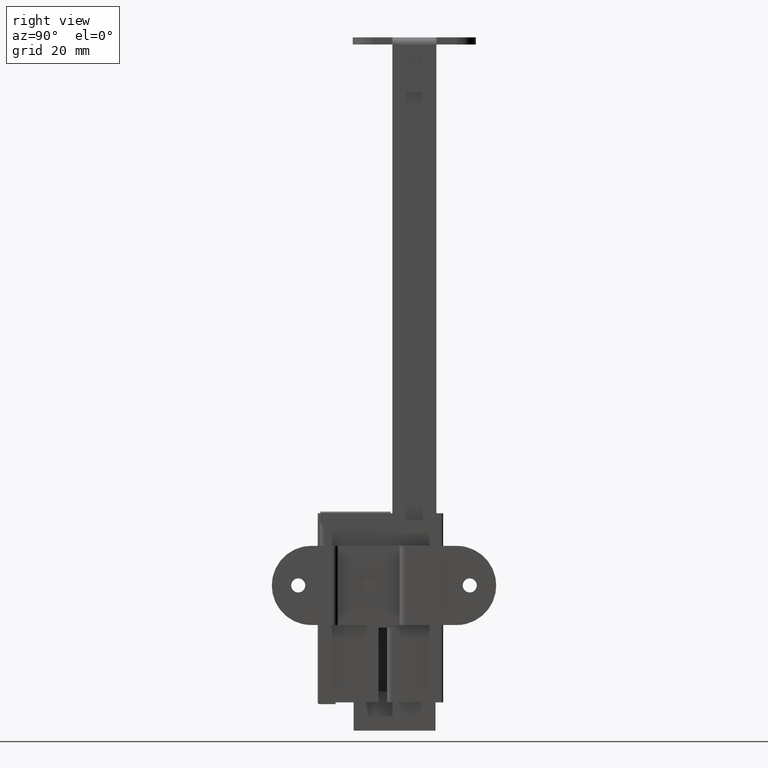
[diagram: clean part render]
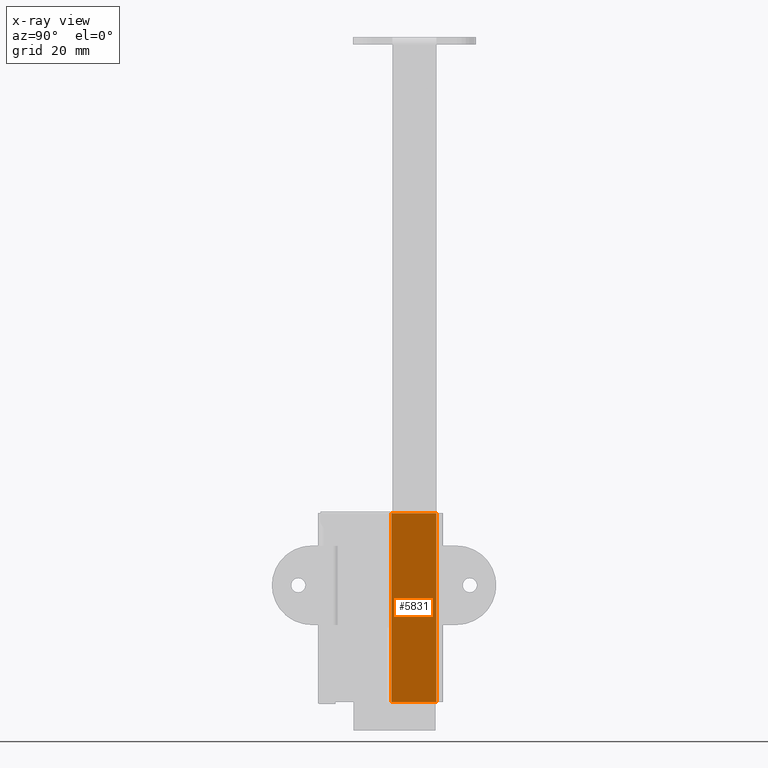
[diagram: x-ray — body ghosted, one internal face saturated and labeled with its STEP entity id]
A machine part, right view, then the same camera in x-ray: the body is ghosted and one INTERNAL B-rep face — a face not visible from any outside direction — is saturated and labeled: STEP entity #5831.
In plain terms, the highlighted face is a freeform B-spline surface patch.
Its self-contained STEP definition (entity closure, byte-faithful):
#5701=CARTESIAN_POINT('',(-2.0,5.0,-216.599985000000000));
#5702=VERTEX_POINT('',#5701);
#5703=CARTESIAN_POINT('',(-2.0,-5.200005000000000,-216.599985000000000));
#5704=VERTEX_POINT('',#5703);
#5705=CARTESIAN_POINT('',(-2.0,5.0,-216.599985000000000));
#5706=CARTESIAN_POINT('',(-2.0,-5.200005000000000,-216.599985000000000));
#5707=QUASI_UNIFORM_CURVE('',1,(#5705,#5706),.UNSPECIFIED.,.F.,.U.);
#5708=EDGE_CURVE('',#5702,#5704,#5707,.T.);
#5737=CARTESIAN_POINT('',(-2.0,5.0,-173.599985000000000));
#5738=VERTEX_POINT('',#5737);
#5739=CARTESIAN_POINT('',(-2.0,-5.200005000000000,-173.599985000000000));
#5740=VERTEX_POINT('',#5739);
#5741=CARTESIAN_POINT('',(-2.0,5.0,-173.599985000000000));
#5742=CARTESIAN_POINT('',(-2.0,-5.200005000000000,-173.599985000000000));
#5743=QUASI_UNIFORM_CURVE('',1,(#5741,#5742),.UNSPECIFIED.,.F.,.U.);
#5744=EDGE_CURVE('',#5738,#5740,#5743,.T.);
#5774=CARTESIAN_POINT('',(-2.0,5.0,-173.599985000000000));
#5775=CARTESIAN_POINT('',(-2.0,5.0,-216.599985000000000));
#5776=QUASI_UNIFORM_CURVE('',1,(#5774,#5775),.UNSPECIFIED.,.F.,.U.);
#5777=EDGE_CURVE('',#5738,#5702,#5776,.T.);
#5812=CARTESIAN_POINT('',(-2.0,-5.200005000000000,-173.599985000000000));
#5813=CARTESIAN_POINT('',(-2.0,-5.200005000000000,-216.599985000000000));
#5814=QUASI_UNIFORM_CURVE('',1,(#5812,#5813),.UNSPECIFIED.,.F.,.U.);
#5815=EDGE_CURVE('',#5740,#5704,#5814,.T.);
#5820=CARTESIAN_POINT('',(-2.0,-5.709495325730761,-171.452140830888510));
#5821=CARTESIAN_POINT('',(-2.0,-5.709495325730761,-218.747842240410190));
#5822=CARTESIAN_POINT('',(-2.0,5.509490508121063,-171.452140830888510));
#5823=CARTESIAN_POINT('',(-2.0,5.509490508121062,-218.747842240410190));
#5824=B_SPLINE_SURFACE_WITH_KNOTS('',1,1,((#5820,#5822),(#5821,#5823)),.UNSPECIFIED.,.F.,.F.,.U.,(2,2),(2,2),(0.0,47.295701409521712),(0.0,11.218985833851830),.UNSPECIFIED.);
#5825=ORIENTED_EDGE('',*,*,#5708,.T.);
#5826=ORIENTED_EDGE('',*,*,#5815,.F.);
#5827=ORIENTED_EDGE('',*,*,#5744,.F.);
#5828=ORIENTED_EDGE('',*,*,#5777,.T.);
#5829=EDGE_LOOP('',(#5825,#5826,#5827,#5828));
#5830=FACE_OUTER_BOUND('',#5829,.T.);
#5831=ADVANCED_FACE('',(#5830),#5824,.F.);